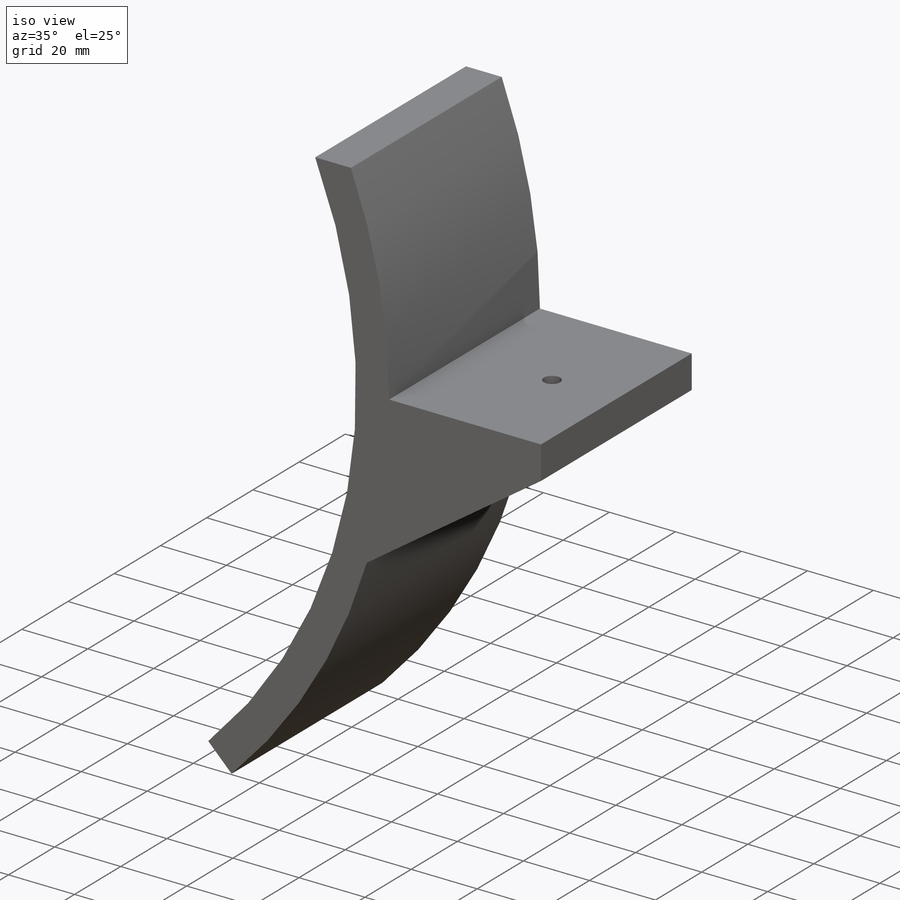
[diagram: iso view]
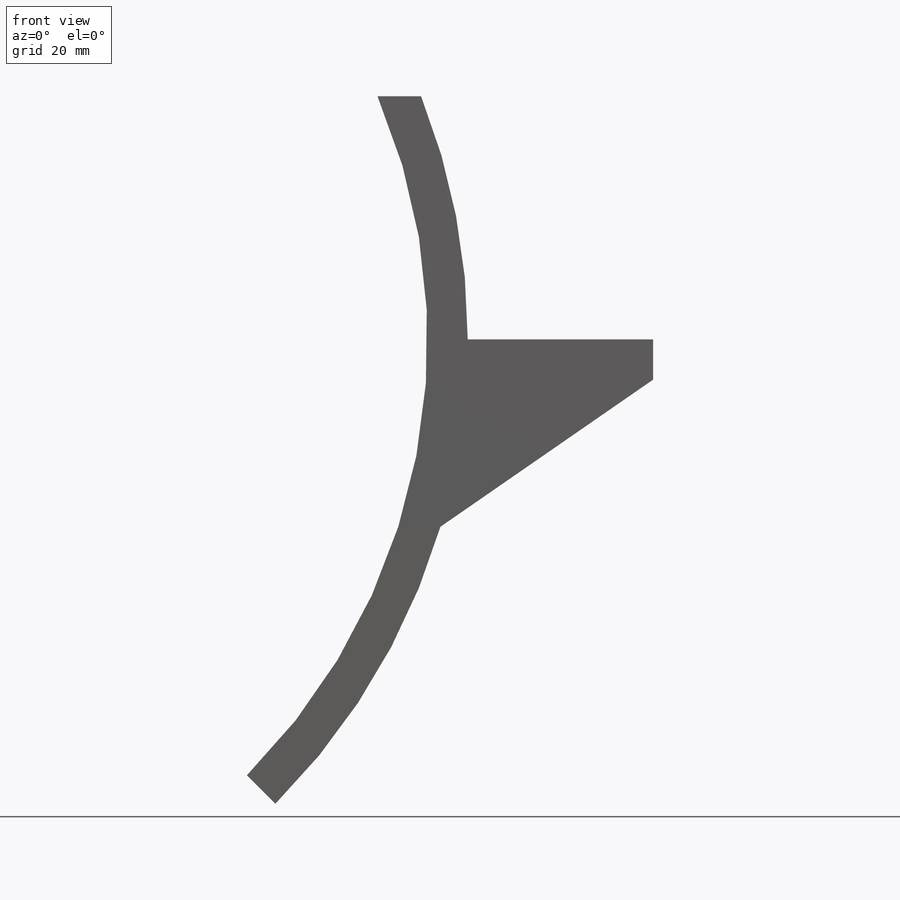
[diagram: front view]
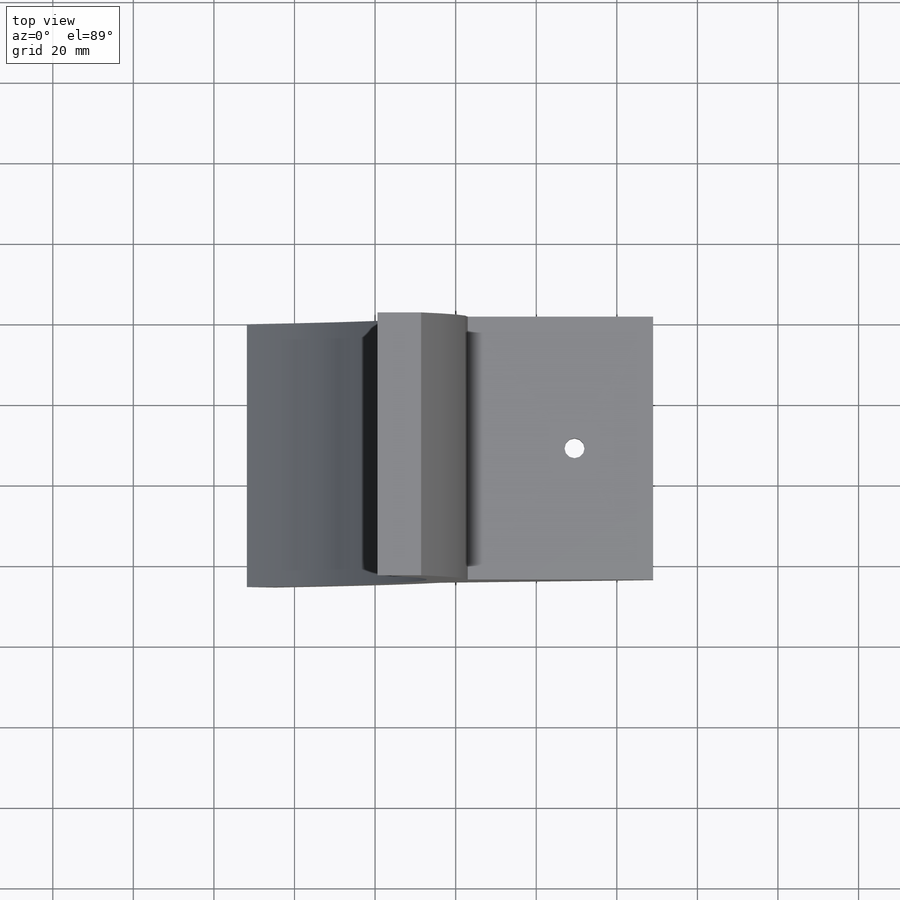
[diagram: top view]
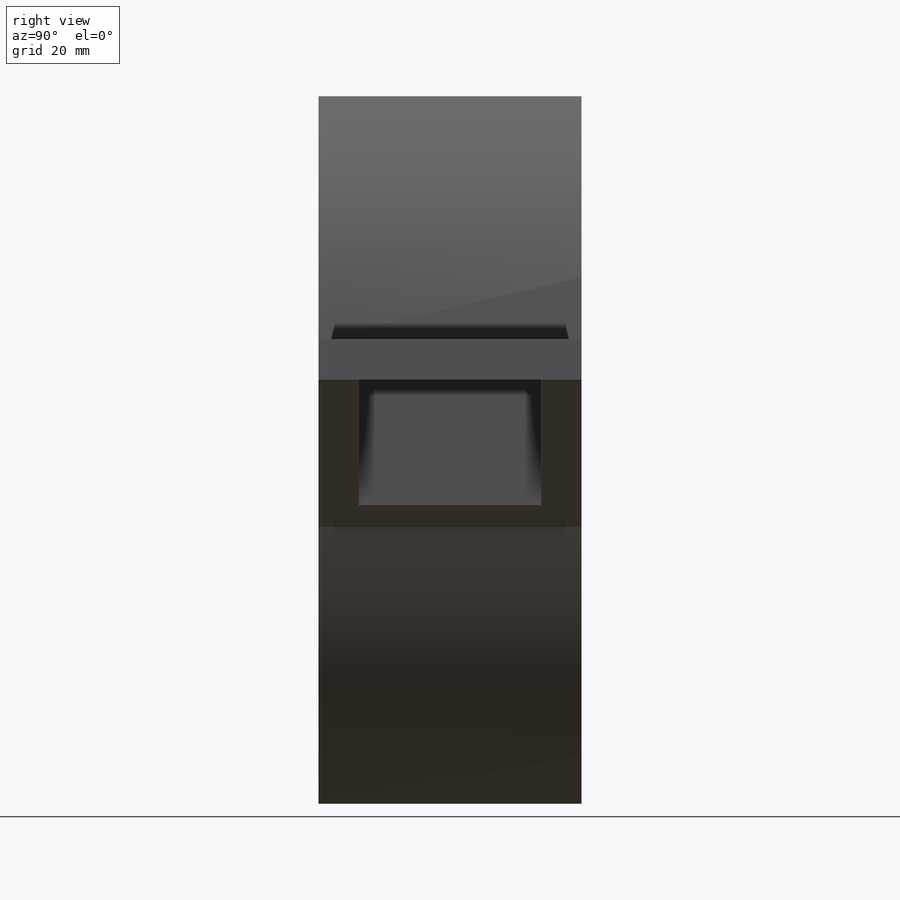
[diagram: right view]
SOLIDWORKS PART (.sldprt)
format: sldprt  version: not decoded by parser v0  size: 193,024 bytes
history: native  units: mm
features: sketch x4, plane x3, cut_extrude x3, material x1, extrude x1 (+9 scaffold rows collapsed)
feature tree (21):
  scaffold x9  (default folders/planes/origin — collapsed)
  material  "Material <sin especificar>"
  plane  "Alzado"
  plane  "Planta"
  plane  "Vista lateral"
  sketch  "Croquis1"  dims[c1.D1=326.0mm c1.D2=306.0mm c2.D1=~138.430007mm c2.D2=~99.290906mm c3.D1=~83.268441mm c4.D1=45.0deg]
  extrude  "Saliente-Extruir1"  Depth=65.25mm
  sketch  "Croquis3"  dims[D1=~36.500323mm]
  cut_extrude  "Cortar-Extruir1"  Depth=45mm
  sketch  "Croquis5"  dims[D1=~5.883724mm]
  cut_extrude  "Cortar-Extruir3"  Depth=45mm
  sketch  "Croquis9"  dims[D1=25.5mm]
  cut_extrude  "Cortar-Extruir5"  Depth=45mm
decode coverage: 8 of 8 modeling features carry decoded parameters
note: ~ marks probable driven/reference dimensions
note: suppression state not decoded; provenance and decode notes live in map.json
